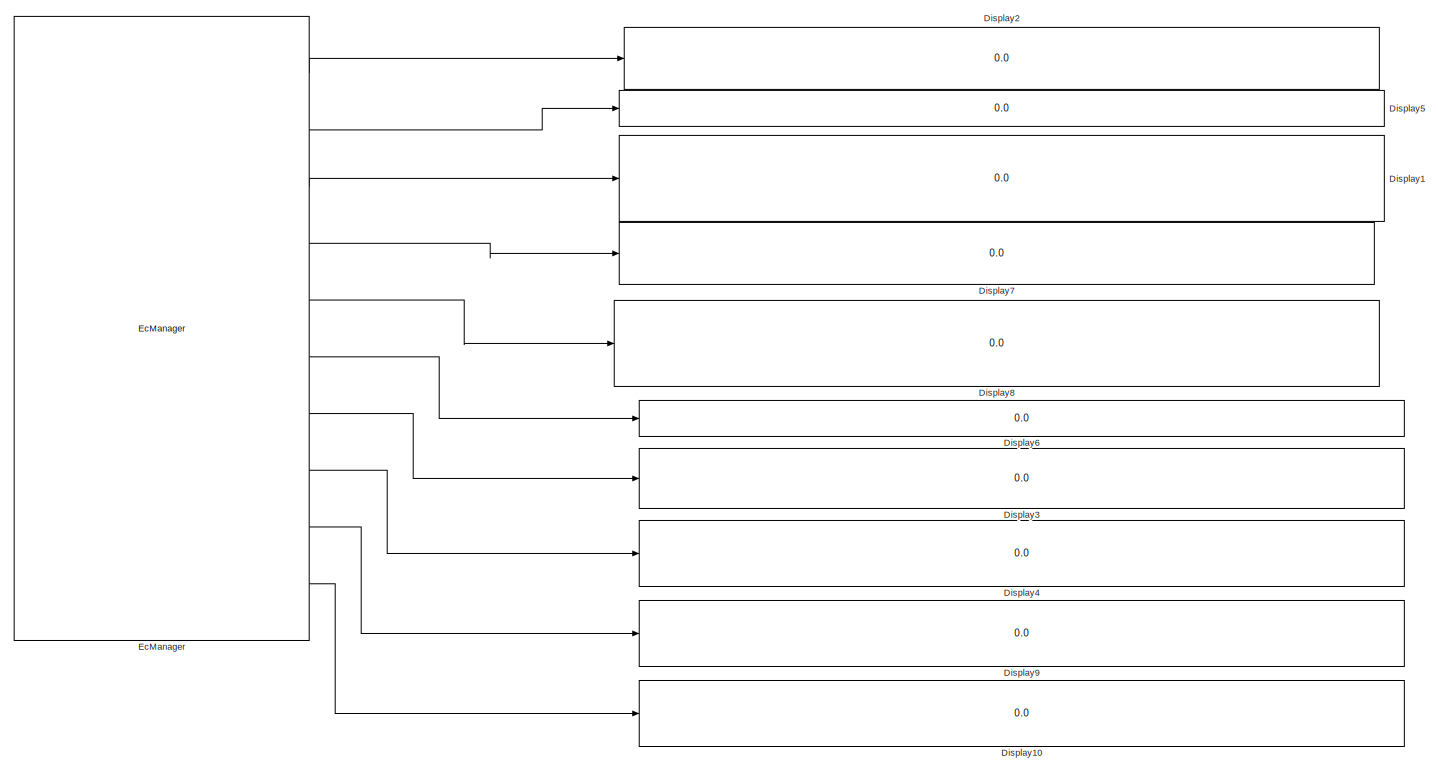
[diagram: root canvas - part 1/1, most of the canvas]
MODEL slx_b51417f93d1f
KIND model
CONFIG AbsTol = auto
CONFIG EnableMultiTasking = off
CONFIG FixedStep = 0.05
CONFIG MaxStep = auto
CONFIG MinStep = auto
CONFIG RelTol = 1e-3
CONFIG SampleTimeConstraint = Unconstrained
CONFIG SolverName = ode3
CONFIG StartTime = 0.0
CONFIG StopTime = inf
BLOCK [Display] Display1
  Decimation = 1
  Ports = [1]
BLOCK [Display] Display10
  Decimation = 1
  Ports = [1]
BLOCK [Display] Display2
  Decimation = 1
  Ports = [1]
BLOCK [Display] Display3
  Decimation = 1
  Ports = [1]
BLOCK [Display] Display4
  Decimation = 1
  Ports = [1]
BLOCK [Display] Display5
  Decimation = 1
  Ports = [1]
BLOCK [Display] Display6
  Decimation = 1
  Ports = [1]
BLOCK [Display] Display7
  Decimation = 1
  Ports = [1]
BLOCK [Display] Display8
  Decimation = 1
  Ports = [1]
BLOCK [Display] Display9
  Decimation = 1
  Ports = [1]
BLOCK [Reference] EcManager  REF=EcBlockToolbox/EcManager
  Ports = [0, 10]
  SourceBlock = EcBlockToolbox/EcManager
  SourceProductName = EcBlock Toolbox
LINE EcManager:1 -> Display2:1
LINE EcManager:10 -> Display10:1
LINE EcManager:2 -> Display5:1
LINE EcManager:3 -> Display1:1
LINE EcManager:4 -> Display7:1
LINE EcManager:5 -> Display8:1
LINE EcManager:6 -> Display6:1
LINE EcManager:7 -> Display3:1
LINE EcManager:8 -> Display4:1
LINE EcManager:9 -> Display9:1
